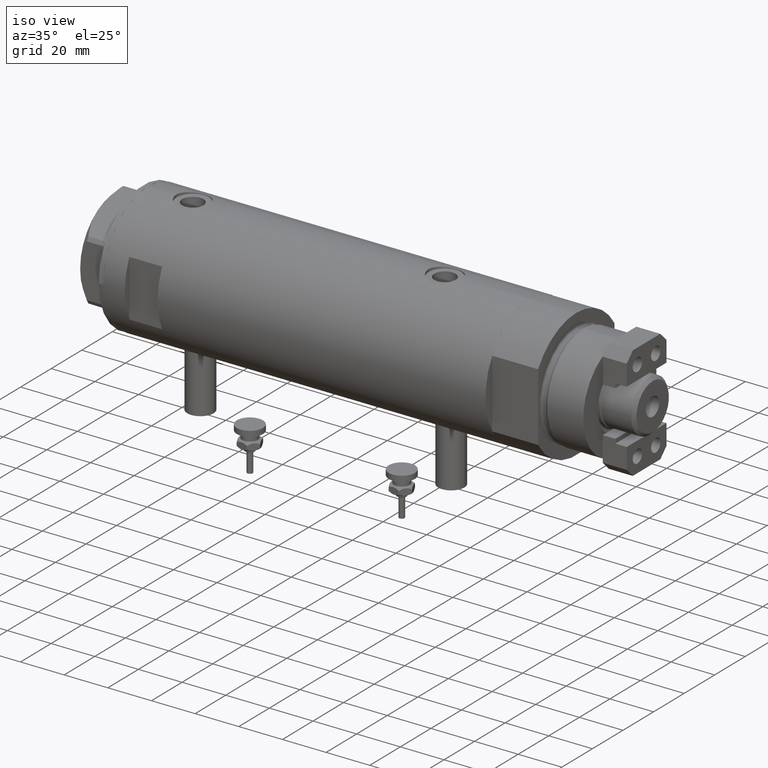
[diagram: clean part render]
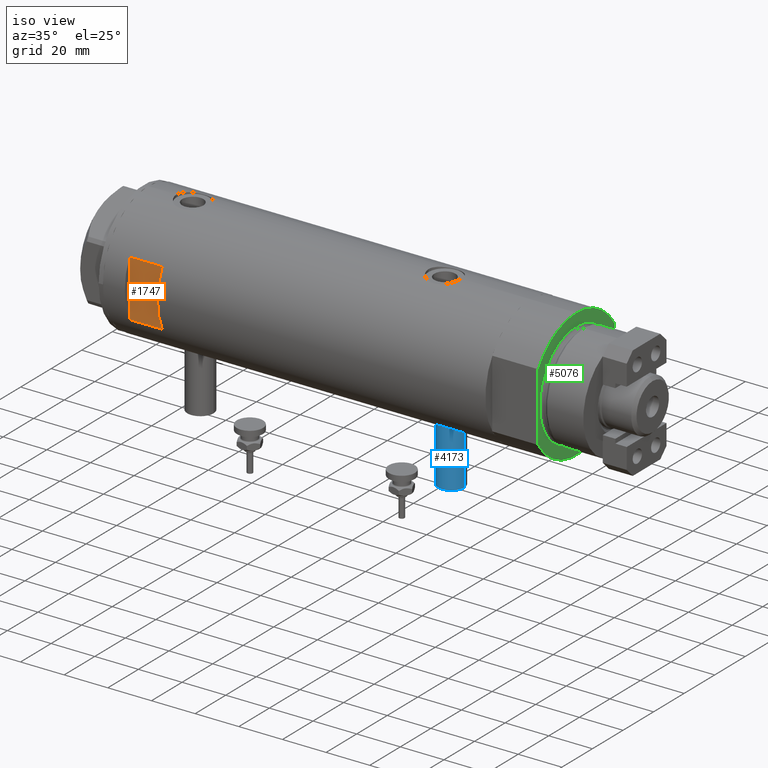
[diagram: same view with three faces highlighted in distinct colors, each labeled with its STEP entity id]
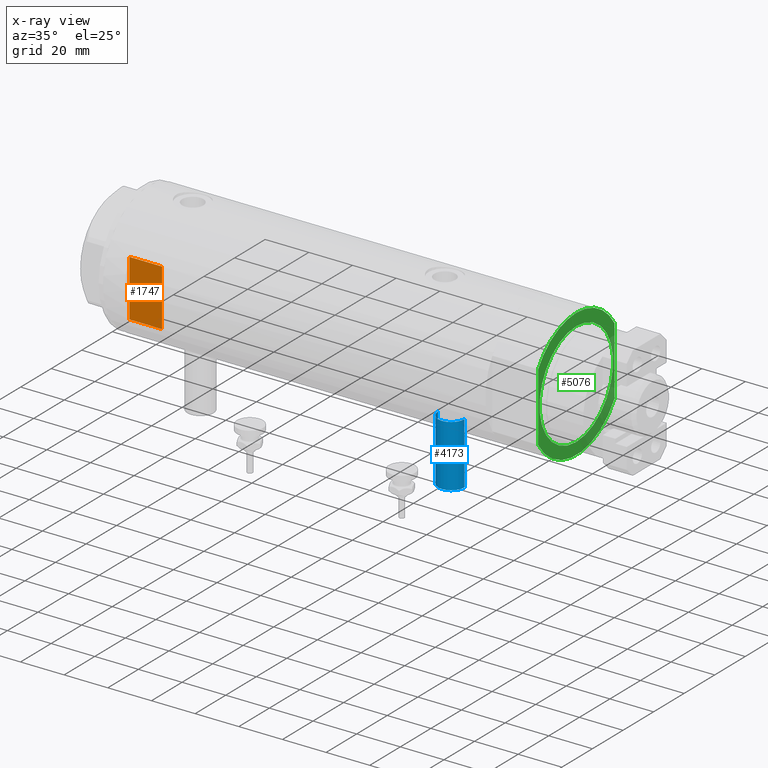
[diagram: x-ray of the same camera — body ghosted, the three highlighted faces saturated]
A machine part, iso view with three faces highlighted in distinct colors.
The next image is the same camera in x-ray (body ghosted, the three faces saturated) — at least one of them is partly hidden behind the body in this view.
Their STEP definitions:

[orange] entity #1747 — the highlighted planar face has unit normal (-0, 1, 0).
#65 = CARTESIAN_POINT ( 'NONE',  ( -29.50000000000000355, -26.50000000000000355, 77.60000000000002274 ) ) ;
#202 = CARTESIAN_POINT ( 'NONE',  ( -12.96148139681573319, -26.49999999999998934, 62.59999999999998721 ) ) ;
#325 = DIRECTION ( 'NONE',  ( 0.000000000000000000, 0.000000000000000000, 1.000000000000000000 ) ) ;
#398 = CARTESIAN_POINT ( 'NONE',  ( -12.96148139681573319, -26.49999999999998934, 77.60000000000002274 ) ) ;
#557 = VERTEX_POINT ( 'NONE', #398 ) ;
#605 = DIRECTION ( 'NONE',  ( 1.000000000000000000, -0.000000000000000000, -0.000000000000000000 ) ) ;
#758 = VERTEX_POINT ( 'NONE', #3596 ) ;
#1588 = LINE ( 'NONE', #5160, #5324 ) ;
#1664 = FACE_OUTER_BOUND ( 'NONE', #2991, .T. ) ;
#1747 = ADVANCED_FACE ( 'NONE', ( #1664 ), #2836, .F. ) ;
#1750 = VECTOR ( 'NONE', #3502, 1000.000000000000000 ) ;
#2295 = DIRECTION ( 'NONE',  ( 0.000000000000000000, -0.000000000000000000, 1.000000000000000000 ) ) ;
#2325 = EDGE_CURVE ( 'NONE', #557, #2484, #1588, .T. ) ;
#2484 = VERTEX_POINT ( 'NONE', #202 ) ;
#2524 = LINE ( 'NONE', #65, #6505 ) ;
#2539 = VERTEX_POINT ( 'NONE', #2865 ) ;
#2595 = EDGE_CURVE ( 'NONE', #557, #2539, #2524, .T. ) ;
#2836 = PLANE ( 'NONE',  #5433 ) ;
#2865 = CARTESIAN_POINT ( 'NONE',  ( 12.96148139681573319, -26.49999999999998934, 77.60000000000002274 ) ) ;
#2920 = CARTESIAN_POINT ( 'NONE',  ( 12.96148139681573319, -26.49999999999999645, -87.59999999999999432 ) ) ;
#2991 = EDGE_LOOP ( 'NONE', ( #5803, #5994, #4077, #4725 ) ) ;
#3312 = EDGE_CURVE ( 'NONE', #758, #2539, #4426, .T. ) ;
#3502 = DIRECTION ( 'NONE',  ( 1.000000000000000000, -0.000000000000000000, -0.000000000000000000 ) ) ;
#3596 = CARTESIAN_POINT ( 'NONE',  ( 12.96148139681573319, -26.49999999999998934, 62.59999999999998721 ) ) ;
#4077 = ORIENTED_EDGE ( 'NONE', *, *, #3312, .T. ) ;
#4167 = CARTESIAN_POINT ( 'NONE',  ( -29.50000000000000355, -26.50000000000000355, 62.60000000000001563 ) ) ;
#4426 = LINE ( 'NONE', #2920, #5112 ) ;
#4725 = ORIENTED_EDGE ( 'NONE', *, *, #2595, .F. ) ;
#5112 = VECTOR ( 'NONE', #325, 1000.000000000000000 ) ;
#5160 = CARTESIAN_POINT ( 'NONE',  ( -12.96148139681573319, -26.49999999999999645, -87.59999999999999432 ) ) ;
#5324 = VECTOR ( 'NONE', #5639, 1000.000000000000000 ) ;
#5371 = CARTESIAN_POINT ( 'NONE',  ( -29.50000000000000355, -26.50000000000000355, 77.60000000000002274 ) ) ;
#5433 = AXIS2_PLACEMENT_3D ( 'NONE', #5371, #6340, #2295 ) ;
#5505 = EDGE_CURVE ( 'NONE', #2484, #758, #6192, .T. ) ;
#5639 = DIRECTION ( 'NONE',  ( -0.000000000000000000, -0.000000000000000000, -1.000000000000000000 ) ) ;
#5803 = ORIENTED_EDGE ( 'NONE', *, *, #2325, .T. ) ;
#5994 = ORIENTED_EDGE ( 'NONE', *, *, #5505, .T. ) ;
#6192 = LINE ( 'NONE', #4167, #1750 ) ;
#6340 = DIRECTION ( 'NONE',  ( 0.000000000000000000, 1.000000000000000000, 0.000000000000000000 ) ) ;
#6505 = VECTOR ( 'NONE', #605, 1000.000000000000000 ) ;

[blue] entity #4173 — the highlighted cylindrical surface (edge-blend (fillet) strip) has radius 6 mm, axis along (0, 0, 1).
#64 = EDGE_CURVE ( 'NONE', #3774, #5700, #4430, .T. ) ;
#147 = VERTEX_POINT ( 'NONE', #4304 ) ;
#344 = DIRECTION ( 'NONE',  ( 0.000000000000000000, 0.000000000000000000, 1.000000000000000000 ) ) ;
#812 = FACE_OUTER_BOUND ( 'NONE', #6220, .T. ) ;
#1195 = ORIENTED_EDGE ( 'NONE', *, *, #3928, .T. ) ;
#1448 = AXIS2_PLACEMENT_3D ( 'NONE', #4527, #2904, #344 ) ;
#1645 = CARTESIAN_POINT ( 'NONE',  ( -56.60000000000000142, 7.347880794884122694E-16, -45.29999999999999005 ) ) ;
#1690 = VERTEX_POINT ( 'NONE', #3114 ) ;
#1789 = CARTESIAN_POINT ( 'NONE',  ( -56.60000000000000142, 0.000000000000000000, -51.29999999999999716 ) ) ;
#1822 = CARTESIAN_POINT ( 'NONE',  ( -28.30000000000000071, 0.000000000000000000, -57.30000000000000426 ) ) ;
#1959 = LINE ( 'NONE', #4018, #4679 ) ;
#2082 = CARTESIAN_POINT ( 'NONE',  ( -28.30000000000000071, 0.000000000000000000, -51.29999999999999716 ) ) ;
#2090 = ORIENTED_EDGE ( 'NONE', *, *, #64, .T. ) ;
#2215 = DIRECTION ( 'NONE',  ( 1.000000000000000000, -0.000000000000000000, -0.000000000000000000 ) ) ;
#2289 = CYLINDRICAL_SURFACE ( 'NONE', #2726, 6.000000000000005329 ) ;
#2423 = ORIENTED_EDGE ( 'NONE', *, *, #3187, .F. ) ;
#2520 = DIRECTION ( 'NONE',  ( 0.000000000000000000, 0.000000000000000000, 1.000000000000000000 ) ) ;
#2726 = AXIS2_PLACEMENT_3D ( 'NONE', #1789, #2765, #4825 ) ;
#2765 = DIRECTION ( 'NONE',  ( 1.000000000000000000, -0.000000000000000000, -0.000000000000000000 ) ) ;
#2904 = DIRECTION ( 'NONE',  ( -1.000000000000000000, 0.000000000000000000, 0.000000000000000000 ) ) ;
#2961 = CIRCLE ( 'NONE', #1448, 6.000000000000005329 ) ;
#3026 = DIRECTION ( 'NONE',  ( -1.000000000000000000, 0.000000000000000000, 0.000000000000000000 ) ) ;
#3111 = DIRECTION ( 'NONE',  ( 1.000000000000000000, -0.000000000000000000, -0.000000000000000000 ) ) ;
#3114 = CARTESIAN_POINT ( 'NONE',  ( -56.60000000000000142, 0.000000000000000000, -57.30000000000000426 ) ) ;
#3187 = EDGE_CURVE ( 'NONE', #1690, #147, #2961, .T. ) ;
#3688 = ORIENTED_EDGE ( 'NONE', *, *, #5255, .F. ) ;
#3774 = VERTEX_POINT ( 'NONE', #1822 ) ;
#3928 = EDGE_CURVE ( 'NONE', #1690, #3774, #1959, .T. ) ;
#4018 = CARTESIAN_POINT ( 'NONE',  ( -56.60000000000000142, 0.000000000000000000, -57.30000000000000426 ) ) ;
#4173 = ADVANCED_FACE ( 'NONE', ( #812 ), #2289, .T. ) ;
#4304 = CARTESIAN_POINT ( 'NONE',  ( -56.60000000000000142, 7.347880794884119736E-16, -45.29999999999999005 ) ) ;
#4430 = CIRCLE ( 'NONE', #4866, 6.000000000000005329 ) ;
#4527 = CARTESIAN_POINT ( 'NONE',  ( -56.60000000000000142, 0.000000000000000000, -51.29999999999999716 ) ) ;
#4679 = VECTOR ( 'NONE', #3111, 1000.000000000000000 ) ;
#4825 = DIRECTION ( 'NONE',  ( 0.000000000000000000, 0.000000000000000000, -1.000000000000000000 ) ) ;
#4866 = AXIS2_PLACEMENT_3D ( 'NONE', #2082, #3026, #2520 ) ;
#5255 = EDGE_CURVE ( 'NONE', #147, #5700, #5891, .T. ) ;
#5396 = VECTOR ( 'NONE', #2215, 1000.000000000000000 ) ;
#5700 = VERTEX_POINT ( 'NONE', #5850 ) ;
#5850 = CARTESIAN_POINT ( 'NONE',  ( -28.30000000000000071, 7.347880794884119736E-16, -45.29999999999999005 ) ) ;
#5891 = LINE ( 'NONE', #1645, #5396 ) ;
#6220 = EDGE_LOOP ( 'NONE', ( #3688, #2423, #1195, #2090 ) ) ;

[green] entity #5076 — the highlighted planar face has unit normal (1, 0, -0).
#324 = DIRECTION ( 'NONE',  ( 0.000000000000000000, 0.000000000000000000, 1.000000000000000000 ) ) ;
#433 = EDGE_CURVE ( 'NONE', #3947, #4157, #4036, .T. ) ;
#482 = VECTOR ( 'NONE', #5591, 1000.000000000000000 ) ;
#683 = EDGE_LOOP ( 'NONE', ( #1447, #5244, #1568, #4190, #1894 ) ) ;
#822 = CARTESIAN_POINT ( 'NONE',  ( 0.000000000000000000, 0.000000000000000000, 21.00000000000000000 ) ) ;
#896 = PLANE ( 'NONE',  #3128 ) ;
#967 = CARTESIAN_POINT ( 'NONE',  ( 0.000000000000000000, 0.000000000000000000, 21.00000000000000000 ) ) ;
#1094 = VERTEX_POINT ( 'NONE', #1655 ) ;
#1108 = CIRCLE ( 'NONE', #1322, 29.50000000000000355 ) ;
#1214 = CARTESIAN_POINT ( 'NONE',  ( -15.66045976336583045, -24.99999999999999645, 20.99999999999999645 ) ) ;
#1322 = AXIS2_PLACEMENT_3D ( 'NONE', #822, #1871, #1905 ) ;
#1395 = CARTESIAN_POINT ( 'NONE',  ( 0.000000000000000000, 0.000000000000000000, 21.00000000000000000 ) ) ;
#1423 = CIRCLE ( 'NONE', #5944, 29.50000000000000355 ) ;
#1443 = ORIENTED_EDGE ( 'NONE', *, *, #4887, .T. ) ;
#1447 = ORIENTED_EDGE ( 'NONE', *, *, #433, .F. ) ;
#1472 = VERTEX_POINT ( 'NONE', #3225 ) ;
#1568 = ORIENTED_EDGE ( 'NONE', *, *, #2638, .F. ) ;
#1655 = CARTESIAN_POINT ( 'NONE',  ( 15.66045976336583045, 24.99999999999999645, 20.99999999999999645 ) ) ;
#1683 = DIRECTION ( 'NONE',  ( 1.000000000000000000, 0.000000000000000000, 0.000000000000000000 ) ) ;
#1801 = VERTEX_POINT ( 'NONE', #4366 ) ;
#1871 = DIRECTION ( 'NONE',  ( 0.000000000000000000, 0.000000000000000000, 1.000000000000000000 ) ) ;
#1894 = ORIENTED_EDGE ( 'NONE', *, *, #5832, .T. ) ;
#1905 = DIRECTION ( 'NONE',  ( 1.000000000000000000, 0.000000000000000000, 0.000000000000000000 ) ) ;
#2085 = CARTESIAN_POINT ( 'NONE',  ( -15.66045976336583401, 25.00000000000000000, 21.00000000000000000 ) ) ;
#2413 = DIRECTION ( 'NONE',  ( 1.000000000000000000, 0.000000000000000000, 0.000000000000000000 ) ) ;
#2580 = CIRCLE ( 'NONE', #5170, 24.00000000000000000 ) ;
#2631 = CARTESIAN_POINT ( 'NONE',  ( 15.66045976336583045, -25.00000000000000000, 21.00000000000000355 ) ) ;
#2638 = EDGE_CURVE ( 'NONE', #1472, #1094, #5629, .T. ) ;
#2850 = FACE_BOUND ( 'NONE', #3183, .T. ) ;
#3097 = DIRECTION ( 'NONE',  ( 1.000000000000000000, 0.000000000000000000, 0.000000000000000000 ) ) ;
#3128 = AXIS2_PLACEMENT_3D ( 'NONE', #1395, #3498, #5553 ) ;
#3183 = EDGE_LOOP ( 'NONE', ( #1443, #3725 ) ) ;
#3225 = CARTESIAN_POINT ( 'NONE',  ( -15.66045976336583045, 24.99999999999999645, 21.00000000000000355 ) ) ;
#3270 = AXIS2_PLACEMENT_3D ( 'NONE', #4876, #4400, #6449 ) ;
#3362 = CARTESIAN_POINT ( 'NONE',  ( 0.000000000000000000, 0.000000000000000000, 21.00000000000000000 ) ) ;
#3402 = DIRECTION ( 'NONE',  ( -1.000000000000000000, -0.000000000000000000, -0.000000000000000000 ) ) ;
#3498 = DIRECTION ( 'NONE',  ( 0.000000000000000000, 0.000000000000000000, 1.000000000000000000 ) ) ;
#3580 = CIRCLE ( 'NONE', #3270, 29.50000000000000355 ) ;
#3725 = ORIENTED_EDGE ( 'NONE', *, *, #4643, .T. ) ;
#3744 = CARTESIAN_POINT ( 'NONE',  ( -24.00000000000000000, 2.939152317953647894E-15, 21.00000000000000000 ) ) ;
#3947 = VERTEX_POINT ( 'NONE', #2631 ) ;
#4036 = LINE ( 'NONE', #6088, #4110 ) ;
#4083 = VERTEX_POINT ( 'NONE', #3744 ) ;
#4110 = VECTOR ( 'NONE', #3402, 1000.000000000000000 ) ;
#4157 = VERTEX_POINT ( 'NONE', #1214 ) ;
#4190 = ORIENTED_EDGE ( 'NONE', *, *, #5784, .T. ) ;
#4276 = DIRECTION ( 'NONE',  ( -0.000000000000000000, -0.000000000000000000, -1.000000000000000000 ) ) ;
#4366 = CARTESIAN_POINT ( 'NONE',  ( -29.50000000000000355, 0.000000000000000000, 21.00000000000000000 ) ) ;
#4400 = DIRECTION ( 'NONE',  ( 0.000000000000000000, 0.000000000000000000, 1.000000000000000000 ) ) ;
#4643 = EDGE_CURVE ( 'NONE', #4083, #5538, #5494, .T. ) ;
#4876 = CARTESIAN_POINT ( 'NONE',  ( 0.000000000000000000, 0.000000000000000000, 21.00000000000000000 ) ) ;
#4887 = EDGE_CURVE ( 'NONE', #5538, #4083, #2580, .T. ) ;
#4976 = FACE_OUTER_BOUND ( 'NONE', #683, .T. ) ;
#5048 = CARTESIAN_POINT ( 'NONE',  ( 24.00000000000000000, 0.000000000000000000, 21.00000000000000000 ) ) ;
#5076 = ADVANCED_FACE ( 'NONE', ( #2850, #4976 ), #896, .T. ) ;
#5170 = AXIS2_PLACEMENT_3D ( 'NONE', #967, #6124, #3097 ) ;
#5244 = ORIENTED_EDGE ( 'NONE', *, *, #5333, .T. ) ;
#5258 = CARTESIAN_POINT ( 'NONE',  ( 0.000000000000000000, 0.000000000000000000, 21.00000000000000000 ) ) ;
#5333 = EDGE_CURVE ( 'NONE', #3947, #1094, #1423, .T. ) ;
#5494 = CIRCLE ( 'NONE', #6243, 24.00000000000000000 ) ;
#5538 = VERTEX_POINT ( 'NONE', #5048 ) ;
#5553 = DIRECTION ( 'NONE',  ( 1.000000000000000000, 0.000000000000000000, -0.000000000000000000 ) ) ;
#5591 = DIRECTION ( 'NONE',  ( 1.000000000000000000, 0.000000000000000000, 0.000000000000000000 ) ) ;
#5629 = LINE ( 'NONE', #2085, #482 ) ;
#5784 = EDGE_CURVE ( 'NONE', #1472, #1801, #3580, .T. ) ;
#5832 = EDGE_CURVE ( 'NONE', #1801, #4157, #1108, .T. ) ;
#5944 = AXIS2_PLACEMENT_3D ( 'NONE', #3362, #324, #2413 ) ;
#6088 = CARTESIAN_POINT ( 'NONE',  ( -15.66045976336583401, -25.00000000000000000, 21.00000000000000000 ) ) ;
#6124 = DIRECTION ( 'NONE',  ( -0.000000000000000000, -0.000000000000000000, -1.000000000000000000 ) ) ;
#6243 = AXIS2_PLACEMENT_3D ( 'NONE', #5258, #4276, #1683 ) ;
#6449 = DIRECTION ( 'NONE',  ( 1.000000000000000000, 0.000000000000000000, 0.000000000000000000 ) ) ;